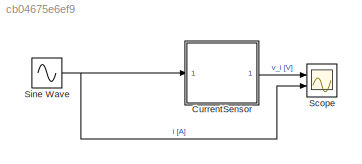
MODEL slx_cb04675e6ef9
KIND model
CONFIG AbsTol = auto
CONFIG EnableMultiTasking = off
CONFIG FixedStep = 0.05
CONFIG MaxStep = auto
CONFIG MinStep = auto
CONFIG RelTol = 1e-3
CONFIG SampleTimeConstraint = Unconstrained
CONFIG SolverName = ode4
CONFIG StartTime = 0.0
CONFIG StopTime = 2
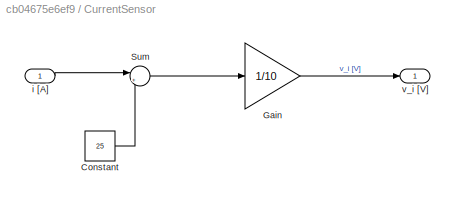
BLOCK [SubSystem] CurrentSensor
  Ports = [1, 1]
  RequestExecContextInheritance = off
BLOCK [Constant] CurrentSensor/Constant
  Value = 25
BLOCK [Gain] CurrentSensor/Gain
  Gain = 1/10
BLOCK [Sum] CurrentSensor/Sum
  Inputs = |++
  Ports = [2, 1]
BLOCK [Inport] CurrentSensor/i [A]
BLOCK [Outport] CurrentSensor/v_i [V]
BLOCK [Scope] Scope
  Floating = off
  NumInputPorts = 2
  Ports = [2]
  ScopeSpecificationString = Simulink.scopes.TimeScopeBlockCfg('CurrentConfiguration', extmgr.ConfigurationSet(extmgr.Configuration('Core','General UI',true),extmgr.Configuration('Core','Source UI',true),extmgr.Configuration('Sources','WiredSimulink',true),extmgr.Configuration('Visuals','Time Domain',true,'SerializedDisplays',{struct('MinYLimReal','-0.625','MaxYLimReal','5.625','YLabelReal','','MinYLimMag','0.00000','MaxYLimM...<+1948ch>
BLOCK [Sin] Sine Wave
  Amplitude = 25
  Frequency = 2*pi
  Ports = [0, 1]
  SampleTime = 0
LINE CurrentSensor/Constant:1 -> CurrentSensor/Sum:2
LINE CurrentSensor/Gain:1 -> CurrentSensor/v_i [V]:1
LINE CurrentSensor/Sum:1 -> CurrentSensor/Gain:1
LINE CurrentSensor/i [A]:1 -> CurrentSensor/Sum:1
LINE CurrentSensor:1 -> Scope:1
NET Sine Wave:1 -> CurrentSensor:1, Scope:2
note: NET lines group one-source signal fan-out (src -> all destinations, sorted); 1:1 wires keep LINE
